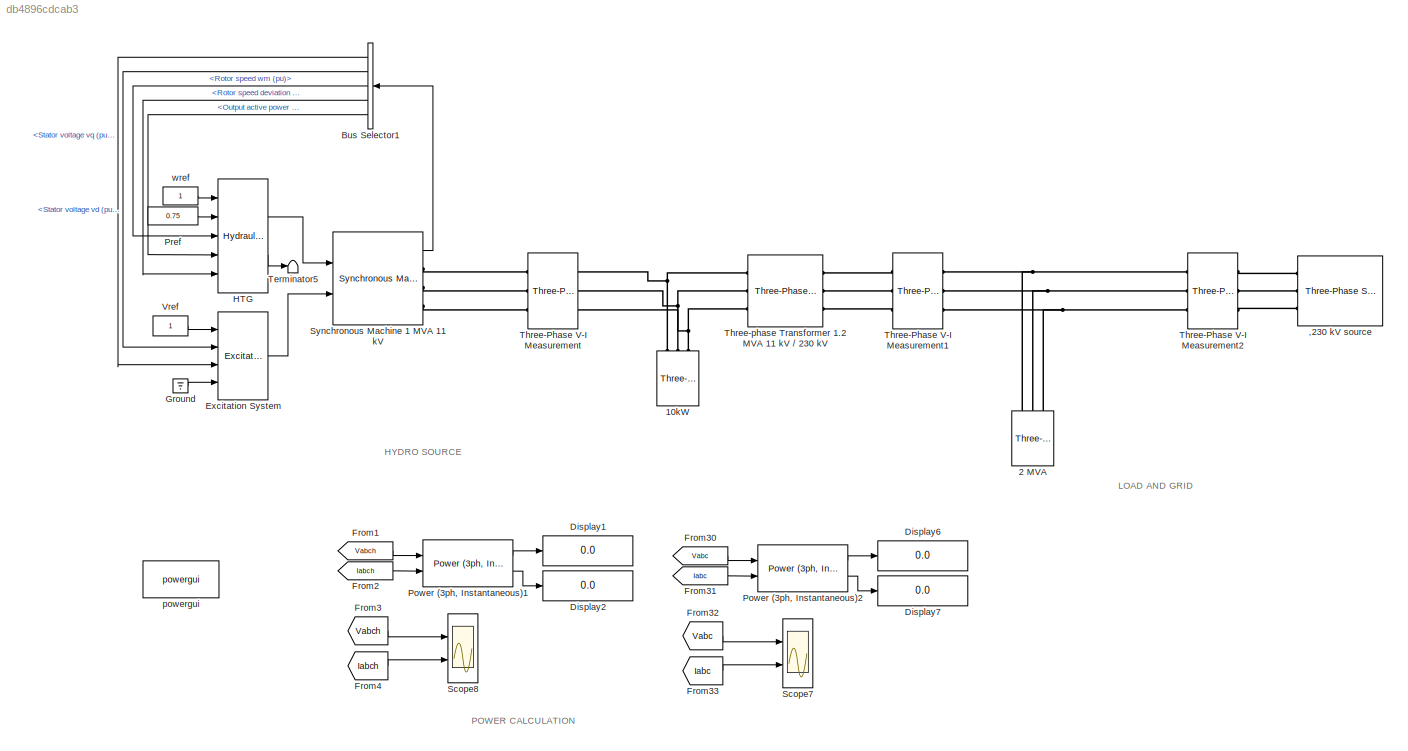
MODEL slx_db4896cdcab3
KIND model
CONFIG AbsTol = auto
CONFIG EnableMultiTasking = off
CONFIG FixedStep = auto
CONFIG MaxStep = auto
CONFIG MinStep = auto
CONFIG RelTol = 1e-3
CONFIG SampleTimeConstraint = Unconstrained
CONFIG SolverName = VariableStepAuto
CONFIG StartTime = 0.0
CONFIG StopTime = 15
BLOCK [Reference] ,230 kV source  REF=spsThreePhaseSourceLib/Three-Phase Source
  Ports = [0, 0, 0, 0, 0, 0, 3]
  SourceBlock = spsThreePhaseSourceLib/Three-Phase Source
  SourceProductBaseCode = PS
  SourceType = Three-Phase Source
BLOCK [Reference] 10kW  REF=spsThreePhaseParallelRLCLoadLib/Three-Phase
Parallel RLC Load
  AttributesFormatString = \n
  NameLocation = left
  Ports = [0, 0, 0, 0, 0, 3]
  SourceBlock = spsThreePhaseParallelRLCLoadLib/Three-Phase\nParallel RLC Load
  SourceProductBaseCode = PS
  SourceType = Three-Phase Parallel RLC Load
BLOCK [Reference] 2 MVA  REF=spsThreePhaseParallelRLCLoadLib/Three-Phase
Parallel RLC Load
  AttributesFormatString = \n
  NameLocation = left
  Ports = [0, 0, 0, 0, 0, 3]
  SourceBlock = spsThreePhaseParallelRLCLoadLib/Three-Phase\nParallel RLC Load
  SourceProductBaseCode = PS
  SourceType = Three-Phase Parallel RLC Load
BLOCK [BusSelector] Bus Selector1
  NameLocation = top
  OutputSignals = dq0 components.Stator voltage  vq (pu),dq0 components.Stator voltage  vd (pu),Mechanical.Rotor speed  wm  (pu),Mechanical.Rotor speed deviation  dw (pu),Output active power   Peo (pu)
  Ports = [1, 5]
BLOCK [Display] Display1
  Decimation = 1
  Ports = [1]
BLOCK [Display] Display2
  Decimation = 1
  Ports = [1]
BLOCK [Display] Display6
  Decimation = 1
  Ports = [1]
BLOCK [Display] Display7
  Decimation = 1
  Ports = [1]
BLOCK [Reference] Excitation System  REF=spsExcitationSystemLib/Excitation System
  Ports = [4, 1]
  SourceBlock = spsExcitationSystemLib/Excitation System
  SourceProductBaseCode = PS
  SourceType = Excitation System
BLOCK [From] From1
  GotoTag = Vabch
  TagVisibility = global
BLOCK [From] From2
  GotoTag = Iabch
  TagVisibility = global
BLOCK [From] From3
  GotoTag = Vabch
  TagVisibility = global
BLOCK [From] From30
  GotoTag = Vabc
  TagVisibility = global
BLOCK [From] From31
  GotoTag = Iabc
  TagVisibility = global
BLOCK [From] From32
  GotoTag = Vabc
  TagVisibility = global
BLOCK [From] From33
  GotoTag = Iabc
  TagVisibility = global
BLOCK [From] From4
  GotoTag = Iabch
  TagVisibility = global
BLOCK [Ground] Ground
BLOCK [Reference] HTG  REF=spsHydraulicTurbineandGovernorLib/Hydraulic Turbine
and Governor
  NameLocation = top
  Ports = [5, 2]
  SourceBlock = spsHydraulicTurbineandGovernorLib/Hydraulic Turbine\nand Governor
  SourceProductBaseCode = PS
  SourceType = Hydraulic Turbine and Governor
BLOCK [Reference] Power (3ph, Instantaneous)1  REF=spsPower3phInstantaneousLib/Power
(3ph, Instantaneous)
  Ports = [2, 2]
  SourceBlock = spsPower3phInstantaneousLib/Power\n(3ph, Instantaneous)
  SourceProductBaseCode = PS
  SourceType = Power (3ph, Instantaneous)
BLOCK [Reference] Power (3ph, Instantaneous)2  REF=spsPower3phInstantaneousLib/Power
(3ph, Instantaneous)
  Ports = [2, 2]
  SourceBlock = spsPower3phInstantaneousLib/Power\n(3ph, Instantaneous)
  SourceProductBaseCode = PS
  SourceType = Power (3ph, Instantaneous)
BLOCK [Constant] Pref
  NameLocation = top
  Value = 0.75
BLOCK [Scope] Scope7
  Floating = off
  NumInputPorts = 2
  Ports = [2]
  ScopeSpecificationString = Simulink.scopes.TimeScopeBlockCfg('CurrentConfiguration', extmgr.ConfigurationSet(extmgr.Configuration('Core','General UI',true),extmgr.Configuration('Core','Source UI',true),extmgr.Configuration('Sources','WiredSimulink',true,'DataLoggingVariableName','ScopeData7'),extmgr.Configuration('Visuals','Time Domain',true,'SerializedDisplays',{struct('MinYLimReal','-234742.76773','MaxYLimReal','234742.77...<+2102ch>
BLOCK [Scope] Scope8
  Floating = off
  NumInputPorts = 2
  Ports = [2]
  ScopeSpecificationString = Simulink.scopes.TimeScopeBlockCfg('CurrentConfiguration', extmgr.ConfigurationSet(extmgr.Configuration('Core','General UI',true),extmgr.Configuration('Core','Source UI',true),extmgr.Configuration('Sources','WiredSimulink',true,'DataLoggingVariableName','ScopeData8'),extmgr.Configuration('Visuals','Time Domain',true,'SerializedDisplays',{struct('MinYLimReal','-234742.76773','MaxYLimReal','234742.77...<+2135ch>
BLOCK [Reference] Synchronous Machine 1 MVA 11 kV  REF=spsSynchronousMachinepuStandardLib/Synchronous Machine
pu Standard
  AttributesFormatString = \n\n
  Ports = [2, 1, 0, 0, 0, 0, 3]
  SourceBlock = spsSynchronousMachinepuStandardLib/Synchronous Machine\npu Standard
  SourceProductBaseCode = PS
  SourceType = Synchronous Machine
BLOCK [Terminator] Terminator5
  NameLocation = top
BLOCK [Reference] Three-Phase V-I Measurement  REF=spsThreePhaseVIMeasurementLib/Three-Phase
V-I Measurement
  Ports = [0, 0, 0, 0, 0, 3, 3]
  SourceBlock = spsThreePhaseVIMeasurementLib/Three-Phase\nV-I Measurement
  SourceProductBaseCode = PS
  SourceType = Three-Phase VI Measurement
BLOCK [Reference] Three-Phase V-I Measurement1  REF=spsThreePhaseVIMeasurementLib/Three-Phase
V-I Measurement
  Ports = [0, 0, 0, 0, 0, 3, 3]
  SourceBlock = spsThreePhaseVIMeasurementLib/Three-Phase\nV-I Measurement
  SourceProductBaseCode = PS
  SourceType = Three-Phase VI Measurement
BLOCK [Reference] Three-Phase V-I Measurement2  REF=spsThreePhaseVIMeasurementLib/Three-Phase
V-I Measurement
  Ports = [0, 0, 0, 0, 0, 3, 3]
  SourceBlock = spsThreePhaseVIMeasurementLib/Three-Phase\nV-I Measurement
  SourceProductBaseCode = PS
  SourceType = Three-Phase VI Measurement
BLOCK [Reference] Three-phase Transformer 1.2 MVA 11 kV // 230 kV  REF=spsThreePhaseTransformerTwoWindingsLib/Three-Phase
Transformer
(Two Windings)
  AttributesFormatString = \n
  Ports = [0, 0, 0, 0, 0, 3, 3]
  SourceBlock = spsThreePhaseTransformerTwoWindingsLib/Three-Phase\nTransformer\n(Two Windings)
  SourceProductBaseCode = PS
  SourceType = Three-Phase Transformer (Two Windings)
BLOCK [Constant] Vref
  NameLocation = top
BLOCK [Reference] powergui  REF=spspowerguiLib/powergui
  Ports = []
  Priority = 2
  SourceBlock = spspowerguiLib/powergui
  SourceProductBaseCode = PS
  SourceType = PSB option menu block
BLOCK [Constant] wref
  NameLocation = top
ANNOTATION (root): HYDRO SOURCE
ANNOTATION (root): LOAD AND GRID
ANNOTATION (root): POWER CALCULATION
LINE Bus Selector1:1 -> Excitation System:3
LINE Bus Selector1:2 -> Excitation System:2
LINE Bus Selector1:3 -> HTG:3
LINE Bus Selector1:4 -> HTG:5
LINE Bus Selector1:5 -> HTG:4
LINE Excitation System:1 -> Synchronous Machine 1 MVA 11 kV:2
LINE From1:1 -> Power (3ph, Instantaneous)1:1
LINE From2:1 -> Power (3ph, Instantaneous)1:2
LINE From30:1 -> Power (3ph, Instantaneous)2:1
LINE From31:1 -> Power (3ph, Instantaneous)2:2
LINE From32:1 -> Scope7:1
LINE From33:1 -> Scope7:2
LINE From3:1 -> Scope8:1
LINE From4:1 -> Scope8:2
LINE Ground:1 -> Excitation System:4
LINE HTG:1 -> Synchronous Machine 1 MVA 11 kV:1
LINE HTG:2 -> Terminator5:1
LINE Power (3ph, Instantaneous)1:1 -> Display1:1
LINE Power (3ph, Instantaneous)1:2 -> Display2:1
LINE Power (3ph, Instantaneous)2:1 -> Display6:1
LINE Power (3ph, Instantaneous)2:2 -> Display7:1
LINE Pref:1 -> HTG:2
LINE Synchronous Machine 1 MVA 11 kV:1 -> Bus Selector1:1
LINE Vref:1 -> Excitation System:1
LINE wref:1 -> HTG:1
PLINE ,230 kV source:RConn1 -- Three-Phase V-I Measurement2:LConn1
PLINE ,230 kV source:RConn2 -- Three-Phase V-I Measurement2:LConn2
PLINE ,230 kV source:RConn3 -- Three-Phase V-I Measurement2:LConn3
PNET net1: 10kW:LConn1 -- Three-Phase V-I Measurement:RConn1 -- Three-phase Transformer 1.2 MVA 11 kV // 230 kV:LConn1
PNET net2: 10kW:LConn2 -- Three-Phase V-I Measurement:RConn2 -- Three-phase Transformer 1.2 MVA 11 kV // 230 kV:LConn2
PNET net3: 10kW:LConn3 -- Three-Phase V-I Measurement:RConn3 -- Three-phase Transformer 1.2 MVA 11 kV // 230 kV:LConn3
PNET net4: 2 MVA:LConn1 -- Three-Phase V-I Measurement1:RConn1 -- Three-Phase V-I Measurement2:RConn1
PNET net5: 2 MVA:LConn2 -- Three-Phase V-I Measurement1:RConn2 -- Three-Phase V-I Measurement2:RConn2
PNET net6: 2 MVA:LConn3 -- Three-Phase V-I Measurement1:RConn3 -- Three-Phase V-I Measurement2:RConn3
PLINE Synchronous Machine 1 MVA 11 kV:RConn1 -- Three-Phase V-I Measurement:LConn1
PLINE Synchronous Machine 1 MVA 11 kV:RConn2 -- Three-Phase V-I Measurement:LConn2
PLINE Synchronous Machine 1 MVA 11 kV:RConn3 -- Three-Phase V-I Measurement:LConn3
PLINE Three-Phase V-I Measurement1:LConn1 -- Three-phase Transformer 1.2 MVA 11 kV // 230 kV:RConn1
PLINE Three-Phase V-I Measurement1:LConn2 -- Three-phase Transformer 1.2 MVA 11 kV // 230 kV:RConn2
PLINE Three-Phase V-I Measurement1:LConn3 -- Three-phase Transformer 1.2 MVA 11 kV // 230 kV:RConn3
note: PNET lines group multi-terminal physical nets as a canonical sorted terminal list (undirected conserving connections); 2-terminal nets keep the pairwise PLINE form
